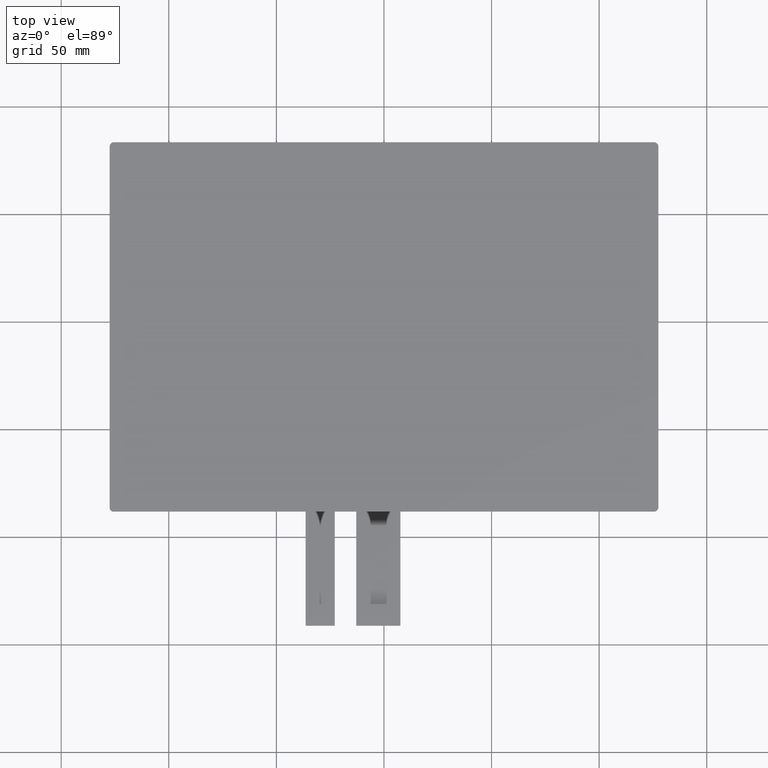
[diagram: clean part render]
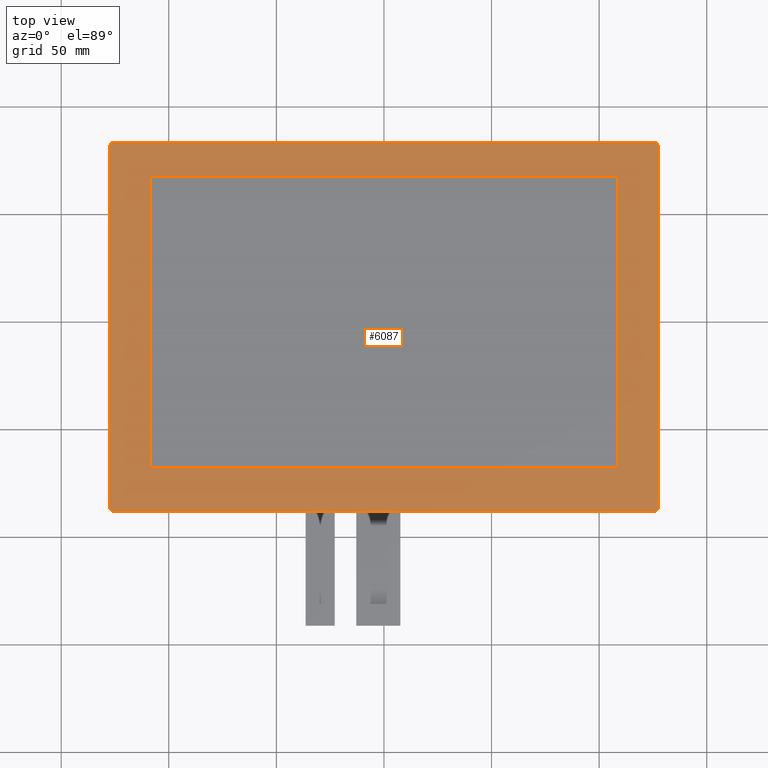
[diagram: same view with one face highlighted and labeled with its STEP entity id]
A machine part, top view. The second image highlights one B-rep face of the part: STEP entity #6087.
In plain terms, the highlighted planar face has unit normal (0, 0, 1).
Its self-contained STEP definition (entity closure, byte-faithful):
#39=FACE_BOUND('',#352,.T.);
#43=FACE_OUTER_BOUND('',#351,.T.);
#351=EDGE_LOOP('',(#3963,#3964,#3965,#3966,#3967,#3968,#3969,#3970));
#352=EDGE_LOOP('',(#3971,#3972,#3973,#3974));
#663=LINE('',#8285,#1551);
#664=LINE('',#8289,#1552);
#665=LINE('',#8293,#1553);
#666=LINE('',#8296,#1554);
#667=LINE('',#8299,#1555);
#668=LINE('',#8301,#1556);
#669=LINE('',#8303,#1557);
#670=LINE('',#8304,#1558);
#1551=VECTOR('',#6747,10.);
#1552=VECTOR('',#6750,10.);
#1553=VECTOR('',#6753,10.);
#1554=VECTOR('',#6756,10.);
#1555=VECTOR('',#6757,10.);
#1556=VECTOR('',#6758,10.);
#1557=VECTOR('',#6759,10.);
#1558=VECTOR('',#6760,10.);
#2439=CIRCLE('',#6418,2.);
#2440=CIRCLE('',#6419,2.);
#2441=CIRCLE('',#6420,2.);
#2442=CIRCLE('',#6421,2.);
#2455=VERTEX_POINT('',#8281);
#2456=VERTEX_POINT('',#8282);
#2457=VERTEX_POINT('',#8284);
#2458=VERTEX_POINT('',#8286);
#2459=VERTEX_POINT('',#8288);
#2460=VERTEX_POINT('',#8290);
#2461=VERTEX_POINT('',#8292);
#2462=VERTEX_POINT('',#8294);
#2463=VERTEX_POINT('',#8297);
#2464=VERTEX_POINT('',#8298);
#2465=VERTEX_POINT('',#8300);
#2466=VERTEX_POINT('',#8302);
#3059=EDGE_CURVE('',#2455,#2456,#2439,.T.);
#3060=EDGE_CURVE('',#2455,#2457,#663,.T.);
#3061=EDGE_CURVE('',#2458,#2457,#2440,.T.);
#3062=EDGE_CURVE('',#2458,#2459,#664,.T.);
#3063=EDGE_CURVE('',#2460,#2459,#2441,.T.);
#3064=EDGE_CURVE('',#2460,#2461,#665,.T.);
#3065=EDGE_CURVE('',#2462,#2461,#2442,.T.);
#3066=EDGE_CURVE('',#2462,#2456,#666,.T.);
#3067=EDGE_CURVE('',#2463,#2464,#667,.T.);
#3068=EDGE_CURVE('',#2465,#2463,#668,.T.);
#3069=EDGE_CURVE('',#2466,#2465,#669,.T.);
#3070=EDGE_CURVE('',#2464,#2466,#670,.T.);
#3963=ORIENTED_EDGE('',*,*,#3059,.F.);
#3964=ORIENTED_EDGE('',*,*,#3060,.T.);
#3965=ORIENTED_EDGE('',*,*,#3061,.F.);
#3966=ORIENTED_EDGE('',*,*,#3062,.T.);
#3967=ORIENTED_EDGE('',*,*,#3063,.F.);
#3968=ORIENTED_EDGE('',*,*,#3064,.T.);
#3969=ORIENTED_EDGE('',*,*,#3065,.F.);
#3970=ORIENTED_EDGE('',*,*,#3066,.T.);
#3971=ORIENTED_EDGE('',*,*,#3067,.F.);
#3972=ORIENTED_EDGE('',*,*,#3068,.F.);
#3973=ORIENTED_EDGE('',*,*,#3069,.F.);
#3974=ORIENTED_EDGE('',*,*,#3070,.F.);
#5771=PLANE('',#6417);
#6087=ADVANCED_FACE('',(#43,#39),#5771,.T.);
#6417=AXIS2_PLACEMENT_3D('',#8280,#6743,#6744);
#6418=AXIS2_PLACEMENT_3D('',#8283,#6745,#6746);
#6419=AXIS2_PLACEMENT_3D('',#8287,#6748,#6749);
#6420=AXIS2_PLACEMENT_3D('',#8291,#6751,#6752);
#6421=AXIS2_PLACEMENT_3D('',#8295,#6754,#6755);
#6743=DIRECTION('center_axis',(0.,0.,1.));
#6744=DIRECTION('ref_axis',(1.,0.,0.));
#6745=DIRECTION('center_axis',(0.,0.,-1.));
#6746=DIRECTION('ref_axis',(0.707106781186548,0.707106781186548,0.));
#6747=DIRECTION('',(-1.,0.,0.));
#6748=DIRECTION('center_axis',(0.,0.,-1.));
#6749=DIRECTION('ref_axis',(-0.707106781186548,0.707106781186548,0.));
#6750=DIRECTION('',(2.06914017402475E-16,-1.,0.));
#6751=DIRECTION('center_axis',(0.,0.,-1.));
#6752=DIRECTION('ref_axis',(-0.707106781186548,-0.707106781186548,0.));
#6753=DIRECTION('',(1.,2.089831575765E-16,0.));
#6754=DIRECTION('center_axis',(0.,0.,-1.));
#6755=DIRECTION('ref_axis',(0.707106781186554,-0.707106781186541,0.));
#6756=DIRECTION('',(-1.03457008701238E-16,1.,0.));
#6757=DIRECTION('',(0.,1.,0.));
#6758=DIRECTION('',(1.,0.,0.));
#6759=DIRECTION('',(0.,-1.,0.));
#6760=DIRECTION('',(-1.,0.,0.));
#8280=CARTESIAN_POINT('Origin',(0.0199999999999712,-2.34999999999998,1.8));
#8281=CARTESIAN_POINT('',(125.52,83.5,1.8));
#8282=CARTESIAN_POINT('',(127.52,81.5,1.8));
#8283=CARTESIAN_POINT('Origin',(125.52,81.5,1.8));
#8284=CARTESIAN_POINT('',(-125.48,83.5,1.8));
#8285=CARTESIAN_POINT('',(127.52,83.5,1.8));
#8286=CARTESIAN_POINT('',(-127.48,81.5,1.8));
#8287=CARTESIAN_POINT('Origin',(-125.48,81.5,1.8));
#8288=CARTESIAN_POINT('',(-127.48,-86.2,1.8));
#8289=CARTESIAN_POINT('',(-127.48,83.5,1.8));
#8290=CARTESIAN_POINT('',(-125.48,-88.2,1.8));
#8291=CARTESIAN_POINT('Origin',(-125.48,-86.2,1.8));
#8292=CARTESIAN_POINT('',(125.52,-88.1999999999999,1.8));
#8293=CARTESIAN_POINT('',(-127.48,-88.2,1.8));
#8294=CARTESIAN_POINT('',(127.52,-86.2,1.8));
#8295=CARTESIAN_POINT('Origin',(125.52,-86.2,1.8));
#8296=CARTESIAN_POINT('',(127.52,-88.1999999999999,1.8));
#8297=CARTESIAN_POINT('',(108.48,-67.8,1.8));
#8298=CARTESIAN_POINT('',(108.48,67.8,1.8));
#8299=CARTESIAN_POINT('',(108.48,-35.075,1.8));
#8300=CARTESIAN_POINT('',(-108.48,-67.8,1.8));
#8301=CARTESIAN_POINT('',(-54.23,-67.8,1.8));
#8302=CARTESIAN_POINT('',(-108.48,67.8,1.8));
#8303=CARTESIAN_POINT('',(-108.48,32.725,1.8));
#8304=CARTESIAN_POINT('',(54.25,67.8,1.8));